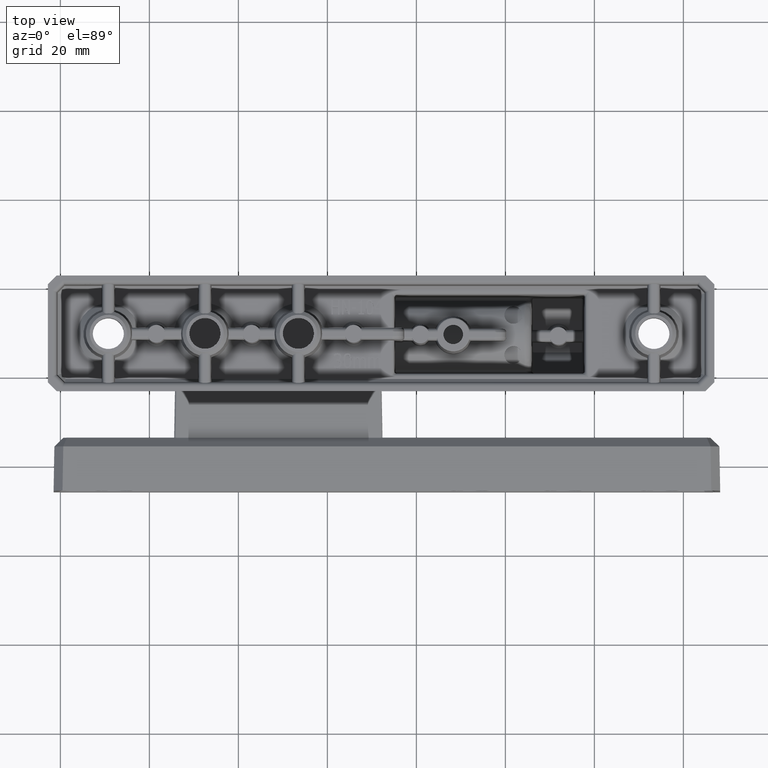
[diagram: clean part render]
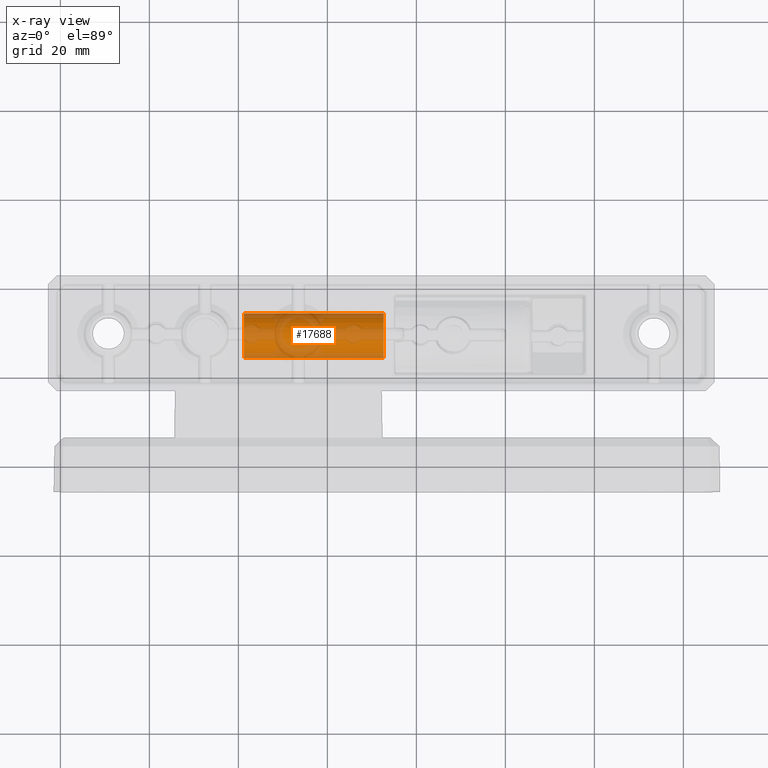
[diagram: x-ray — body ghosted, one internal face saturated and labeled with its STEP entity id]
A machine part, top view, then the same camera in x-ray: the body is ghosted and one INTERNAL B-rep face — a face not visible from any outside direction — is saturated and labeled: STEP entity #17688.
In plain terms, the highlighted cylindrical surface (bore or boss wall) has radius 5 mm, axis along (-1, 0, 0).
Its self-contained STEP definition (entity closure, byte-faithful):
#4456=CYLINDRICAL_SURFACE('',#18788,5.);
#4609=FACE_BOUND('',#6123,.T.);
#5130=FACE_OUTER_BOUND('',#6122,.T.);
#6122=EDGE_LOOP('',(#13634));
#6123=EDGE_LOOP('',(#13635));
#6764=CIRCLE('',#18789,5.);
#6765=CIRCLE('',#18790,5.);
#7724=VERTEX_POINT('',#28451);
#7725=VERTEX_POINT('',#28453);
#9833=EDGE_CURVE('',#7724,#7724,#6764,.T.);
#9834=EDGE_CURVE('',#7725,#7725,#6765,.T.);
#13634=ORIENTED_EDGE('',*,*,#9833,.F.);
#13635=ORIENTED_EDGE('',*,*,#9834,.F.);
#17688=ADVANCED_FACE('',(#5130,#4609),#4456,.F.);
#18788=AXIS2_PLACEMENT_3D('',#28450,#21339,#21340);
#18789=AXIS2_PLACEMENT_3D('',#28452,#21341,#21342);
#18790=AXIS2_PLACEMENT_3D('',#28454,#21343,#21344);
#21339=DIRECTION('center_axis',(1.,0.,0.));
#21340=DIRECTION('ref_axis',(0.,0.,-1.));
#21341=DIRECTION('center_axis',(1.,0.,0.));
#21342=DIRECTION('ref_axis',(0.,0.,-1.));
#21343=DIRECTION('center_axis',(-1.,0.,0.));
#21344=DIRECTION('ref_axis',(0.,0.,-1.));
#28450=CARTESIAN_POINT('Origin',(-72.2000000000001,37.0000000000009,-35.0000000000002));
#28451=CARTESIAN_POINT('',(-72.2000000000001,37.0000000000009,-30.0000000000002));
#28452=CARTESIAN_POINT('Origin',(-72.2000000000001,37.0000000000009,-35.0000000000002));
#28453=CARTESIAN_POINT('',(-40.8000000000002,37.0000000000009,-30.0000000000002));
#28454=CARTESIAN_POINT('Origin',(-40.8000000000002,37.0000000000009,-35.0000000000002));